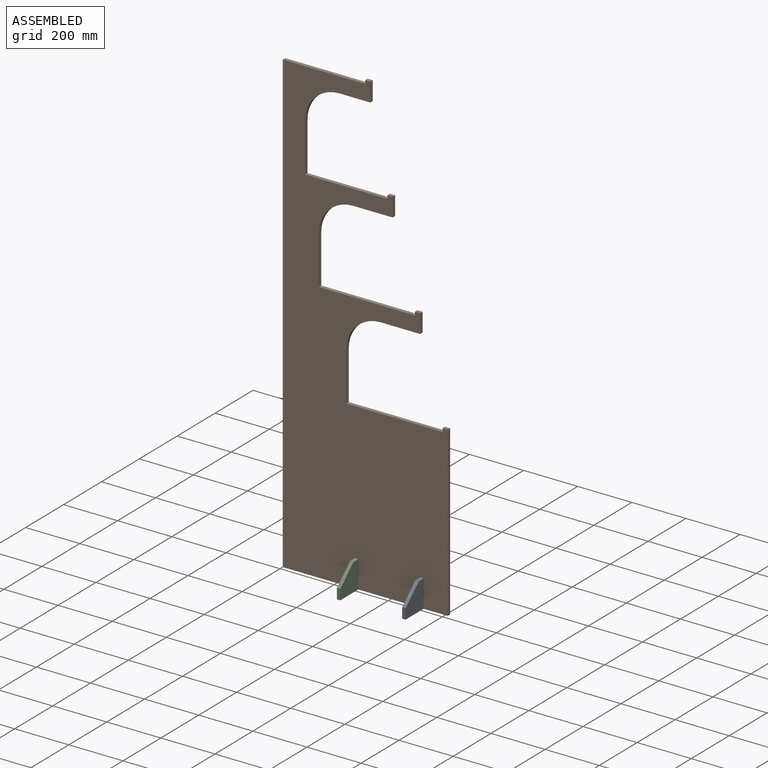
[diagram: assembled view]
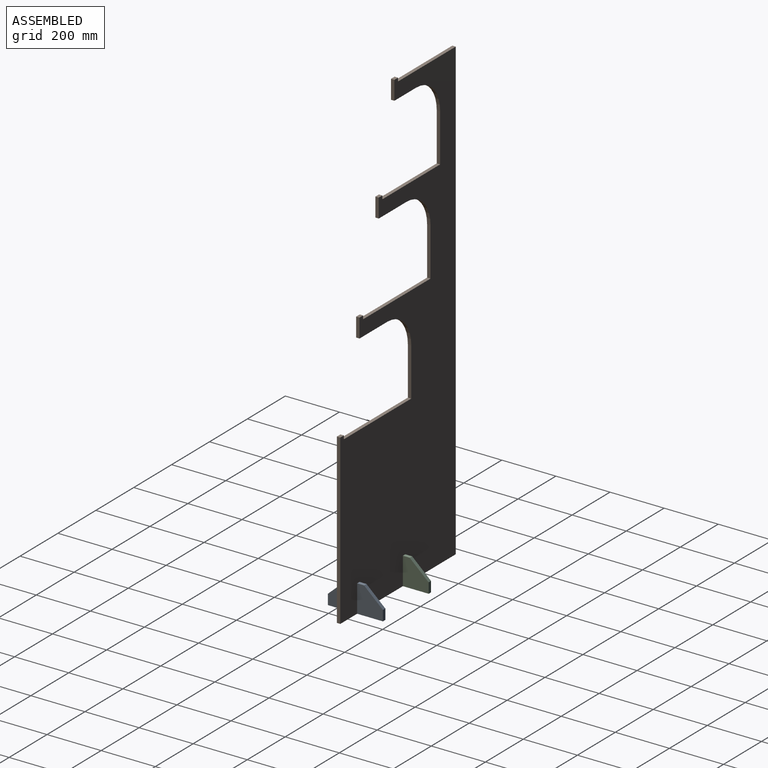
[diagram: assembled view, second angle]
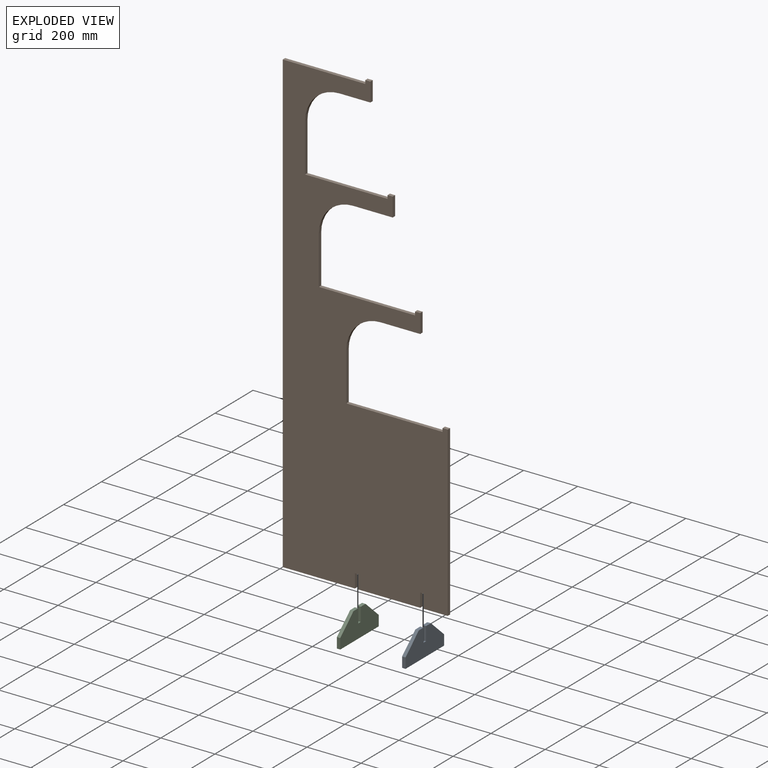
[diagram: exploded view]
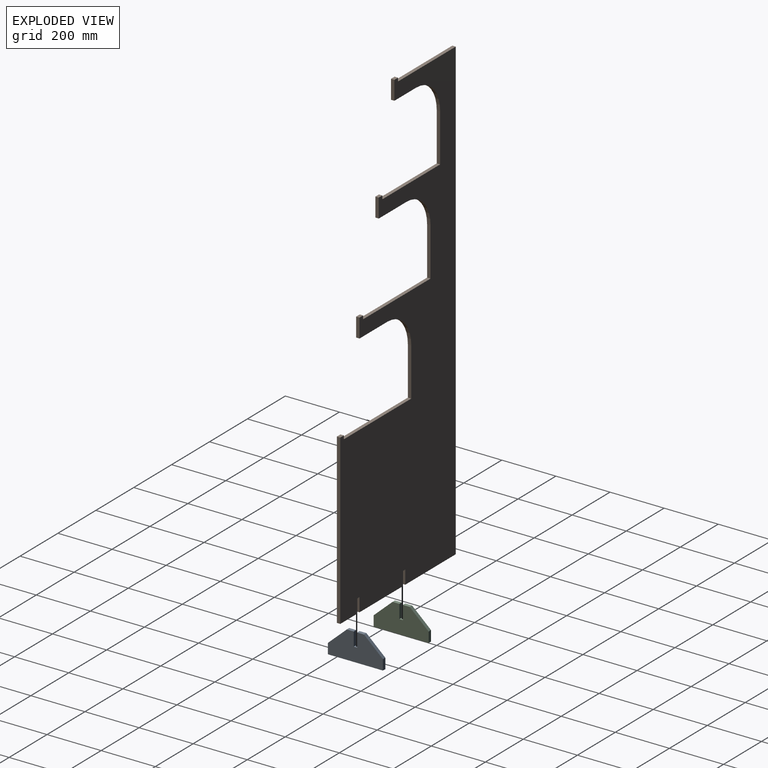
[diagram: exploded view, second angle]
ASSEMBLY  parts=3 mates=2
PART A: 14 faces, bbox 203.2x12.7x101.6 mm
  f0: plane 38.1x12.7mm, normal (-1,0,0), area 483.9mm2, adj f1,f9,f10,f11
  f1: plane 203.2x12.7mm, normal (0,0,-1), area 2580.6mm2, adj f0,f2,f10,f11
  f2: plane 38.1x12.7mm, normal (1,0,0), area 483.9mm2, adj f1,f3,f10,f11
  f3: plane 69.85x63.5mm, normal (0.67,0,0.74), area 1198.9mm2, adj f2,f4,f10,f11
  f4: plane 25.4x12.7mm, normal (0,0,1), area 322.6mm2, adj f3,f5,f10,f11
  f5: plane 50.8x12.7mm, normal (-1,0,0), area 645.2mm2, adj f4,f6,f10,f11
  f6: plane 12.7x12.7mm, normal (0,0,1), area 153.4mm2, adj f5,f7,f10,f11,f13
  f7: plane 50.8x12.7mm, normal (1,0,0), area 645.2mm2, adj f6,f8,f10,f11
  f8: plane 25.4x12.7mm, normal (0,0,1), area 322.6mm2, adj f7,f9,f10,f11
  f9: plane 69.85x63.5mm, normal (-0.67,0,0.74), area 1198.9mm2, adj f0,f8,f10,f11
  f10: plane 203.2x101.6mm, normal (0,-1,0), area 15564.5mm2, adj f0,f1,f2,f3,f4,f5,f6,f7
  f11: plane 203.2x101.6mm, normal (0,1,0), area 15564.5mm2, adj f0,f1,f2,f3,f4,f5,f6,f7
  f12: cone r=0mm half-angle=59deg, axis (0,0,1), area 9.2mm2, adj f13
  f13: cylinder r=1.59mm len=12.7mm, axis (0,0,1), area 126.7mm2, adj f6,f12
PART B: 41 faces, bbox 609.6x12.7x1708.2 mm
  f0: plane 12.7x12.7mm, normal (-1,0,0), area 161.3mm2, adj f1,f34,f35,f36
  f1: plane 304.8x12.7mm, normal (0,0,1), area 3871mm2, adj f0,f2,f35,f36
  f2: plane 1695.45x12.7mm, normal (-1,0,0), area 21532.2mm2, adj f1,f3,f35,f36
  f3: plane 266.7x12.7mm, normal (0,0,-1), area 3387.1mm2, adj f2,f4,f35,f36
  f4: plane 50.8x12.7mm, normal (1,0,0), area 645.2mm2, adj f3,f5,f35,f36
  f5: plane 12.7x12.7mm, normal (0,0,-1), area 153.4mm2, adj f4,f6,f35,f36,f38
  f6: plane 50.8x12.7mm, normal (-1,0,0), area 645.2mm2, adj f5,f7,f35,f36
  f7: plane 228.6x12.7mm, normal (0,0,-1), area 2903.2mm2, adj f6,f8,f35,f36
  f8: plane 50.8x12.7mm, normal (1,0,0), area 645.2mm2, adj f7,f9,f35,f36
  f9: plane 12.7x12.7mm, normal (0,0,-1), area 153.4mm2, adj f8,f10,f35,f36,f40
  f10: plane 50.8x12.7mm, normal (-1,0,0), area 645.2mm2, adj f9,f11,f35,f36
  f11: plane 88.9x12.7mm, normal (0,0,-1), area 1129mm2, adj f10,f12,f35,f36
  f12: plane 622.3x12.7mm, normal (1,0,0), area 7903.2mm2, adj f11,f13,f35,f36
  f13: plane 19.05x12.7mm, normal (0,0,1), area 241.9mm2, adj f12,f14,f35,f36
  f14: plane 12.7x12.7mm, normal (-1,0,0), area 161.3mm2, adj f13,f15,f35,f36
  f15: plane 355.6x12.7mm, normal (0,0,1), area 4516.1mm2, adj f14,f16,f35,f36
  f16: plane 177.8x12.7mm, normal (1,0,0), area 2258.1mm2, adj f15,f17,f35,f36
  f17: cylinder r=127mm len=127mm, axis (0,1,0), area 2533.5mm2, adj f16,f18,f35,f36
  f18: plane 146.05x12.7mm, normal (0,0,-1), area 1854.8mm2, adj f17,f19,f35,f36
  f19: plane 69.85x12.7mm, normal (1,0,0), area 887.1mm2, adj f18,f20,f35,f36
  f20: plane 19.05x12.7mm, normal (0,0,1), area 241.9mm2, adj f19,f21,f35,f36
  f21: plane 12.7x12.7mm, normal (-1,0,0), area 161.3mm2, adj f20,f22,f35,f36
  f22: plane 355.6x12.7mm, normal (0,0,1), area 4516.1mm2, adj f21,f23,f35,f36
  f23: plane 177.8x12.7mm, normal (1,0,0), area 2258.1mm2, adj f22,f24,f35,f36
  f24: cylinder r=127mm len=127mm, axis (0,1,0), area 2533.5mm2, adj f23,f25,f35,f36
  f25: plane 146.05x12.7mm, normal (0,0,-1), area 1854.8mm2, adj f24,f26,f35,f36
  f26: plane 69.85x12.7mm, normal (1,0,0), area 887.1mm2, adj f25,f27,f35,f36
  f27: plane 19.05x12.7mm, normal (0,0,1), area 241.9mm2, adj f26,f28,f35,f36
  f28: plane 12.7x12.7mm, normal (-1,0,0), area 161.3mm2, adj f27,f29,f35,f36
  f29: plane 304.8x12.7mm, normal (0,0,1), area 3871mm2, adj f28,f30,f35,f36
  f30: plane 177.8x12.7mm, normal (1,0,0), area 2258.1mm2, adj f29,f31,f35,f36
  f31: cylinder r=127mm len=127mm, axis (0,1,0), area 2533.5mm2, adj f30,f32,f35,f36
  f32: plane 114.3x12.7mm, normal (0,0,-1), area 1451.6mm2, adj f31,f33,f35,f36
  f33: plane 69.85x12.7mm, normal (1,0,0), area 887.1mm2, adj f32,f34,f35,f36
  f34: plane 19.05x12.7mm, normal (0,0,1), area 241.9mm2, adj f0,f33,f35,f36
  f35: plane 1708.15x609.6mm, normal (0,-1,0), area 589858.6mm2, adj f0,f1,f2,f3,f4,f5,f6,f7
  f36: plane 1708.15x609.6mm, normal (0,1,0), area 589858.6mm2, adj f0,f1,f2,f3,f4,f5,f6,f7
  f37: cone r=0mm half-angle=59deg, axis (0,0,-1), area 9.2mm2, adj f38
  f38: cylinder r=1.59mm len=12.7mm, axis (0,0,-1), area 126.7mm2, adj f5,f37
  f39: cone r=0mm half-angle=59deg, axis (0,0,-1), area 9.2mm2, adj f40
  f40: cylinder r=1.59mm len=12.7mm, axis (0,0,-1), area 126.7mm2, adj f9,f39
PART C: same geometry as A
PLACE A rot(axis=(0,0,1),90deg) t=(-98.81,-271.6,-676.05)mm
PLACE B t=(-425.38,-334.23,419.41)mm
PLACE C rot(axis=(0,0,-1),90deg) t=(-327.41,-409.55,-676.05)mm
MATE fastened C.f12 <-> B.f37  axis (0,0,1) through (-333.76,-340.58,-603.92)mm
MATE fastened A.f12 <-> B.f39  axis (0,0,1) through (-92.46,-340.58,-603.92)mm
